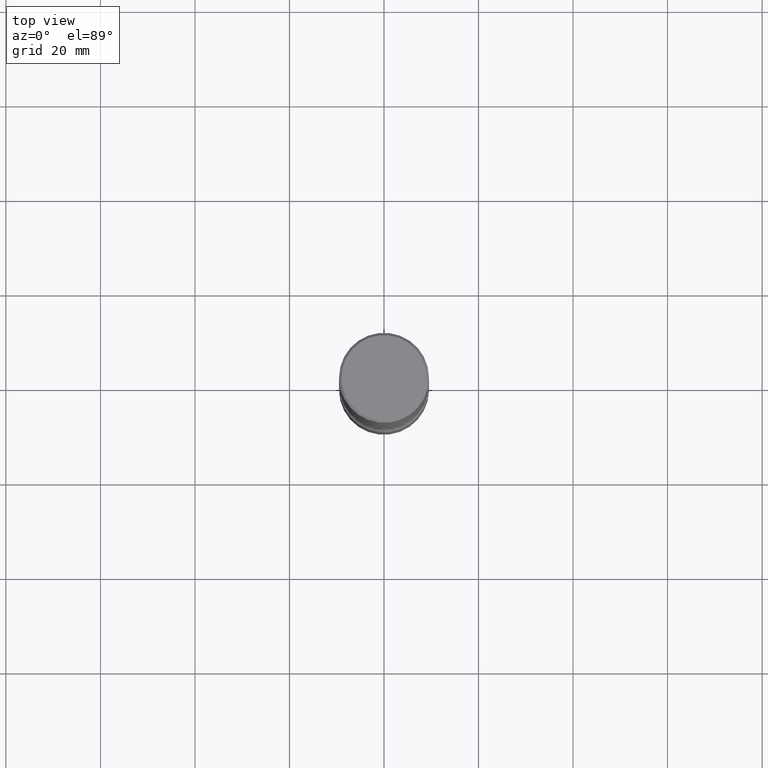
[diagram: clean part render]
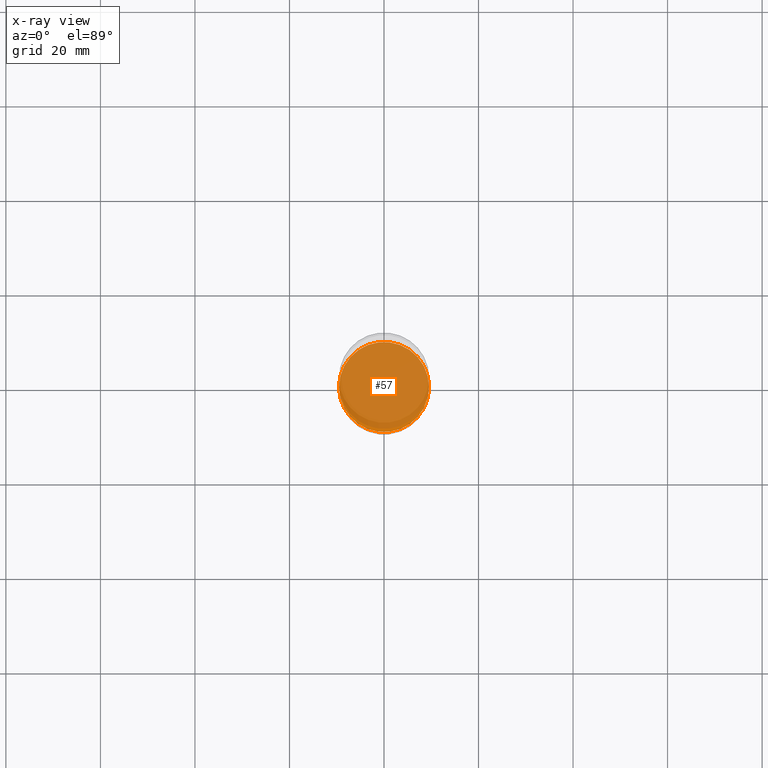
[diagram: x-ray — body ghosted, one internal face saturated and labeled with its STEP entity id]
A machine part, top view, then the same camera in x-ray: the body is ghosted and one INTERNAL B-rep face — a face not visible from any outside direction — is saturated and labeled: STEP entity #57.
In plain terms, the highlighted planar face has unit normal (0, -0, -1).
Its self-contained STEP definition (entity closure, byte-faithful):
#10 = CARTESIAN_POINT ( 'NONE',  ( 1.100460962783311244E-28, -1.571166602479415374E-14, -4.499999999999999112 ) ) ;
#15 = CIRCLE ( 'NONE', #327, 0.3750000000000003886 ) ;
#21 = VERTEX_POINT ( 'NONE', #157 ) ;
#36 = CARTESIAN_POINT ( 'NONE',  ( 1.100460962783311244E-28, -1.571166602479415374E-14, -4.499999999999999112 ) ) ;
#57 = ADVANCED_FACE ( 'NONE', ( #415 ), #324, .F. ) ;
#58 = CIRCLE ( 'NONE', #491, 0.3750000000000003886 ) ;
#84 = DIRECTION ( 'NONE',  ( -2.445468806185136597E-29, 3.491481338843145583E-15, 1.000000000000000000 ) ) ;
#118 = CARTESIAN_POINT ( 'NONE',  ( 1.100460962783311244E-28, -1.571166602479415374E-14, -4.499999999999999112 ) ) ;
#129 = DIRECTION ( 'NONE',  ( 1.000000000000000000, -6.982962677686265922E-15, 0.000000000000000000 ) ) ;
#135 = DIRECTION ( 'NONE',  ( -2.445468806185136597E-29, 3.491481338843145583E-15, 1.000000000000000000 ) ) ;
#157 = CARTESIAN_POINT ( 'NONE',  ( -0.3750000000000003886, -1.522930660247074112E-14, -4.499999999999999112 ) ) ;
#193 = EDGE_CURVE ( 'NONE', #521, #21, #15, .T. ) ;
#212 = AXIS2_PLACEMENT_3D ( 'NONE', #36, #467, #297 ) ;
#242 = ORIENTED_EDGE ( 'NONE', *, *, #349, .T. ) ;
#285 = EDGE_LOOP ( 'NONE', ( #306, #242 ) ) ;
#291 = CARTESIAN_POINT ( 'NONE',  ( 0.3750000000000003886, -1.833027702892650691E-14, -4.499999999999999112 ) ) ;
#297 = DIRECTION ( 'NONE',  ( -1.000000000000000000, 6.982962677686265922E-15, -4.876176775795935793E-29 ) ) ;
#306 = ORIENTED_EDGE ( 'NONE', *, *, #193, .T. ) ;
#324 = PLANE ( 'NONE',  #212 ) ;
#327 = AXIS2_PLACEMENT_3D ( 'NONE', #118, #84, #129 ) ;
#349 = EDGE_CURVE ( 'NONE', #21, #521, #58, .T. ) ;
#415 = FACE_OUTER_BOUND ( 'NONE', #285, .T. ) ;
#443 = DIRECTION ( 'NONE',  ( 1.000000000000000000, -6.982962677686265922E-15, 0.000000000000000000 ) ) ;
#467 = DIRECTION ( 'NONE',  ( 2.438088387897960049E-29, -3.491481338843145188E-15, -1.000000000000000000 ) ) ;
#491 = AXIS2_PLACEMENT_3D ( 'NONE', #10, #135, #443 ) ;
#521 = VERTEX_POINT ( 'NONE', #291 ) ;